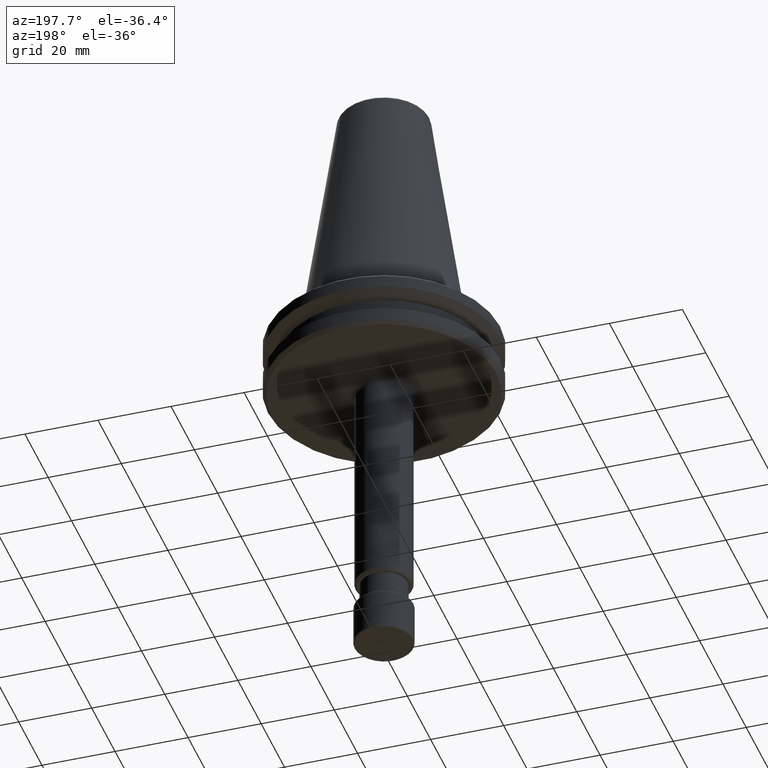
[diagram: clean part render]
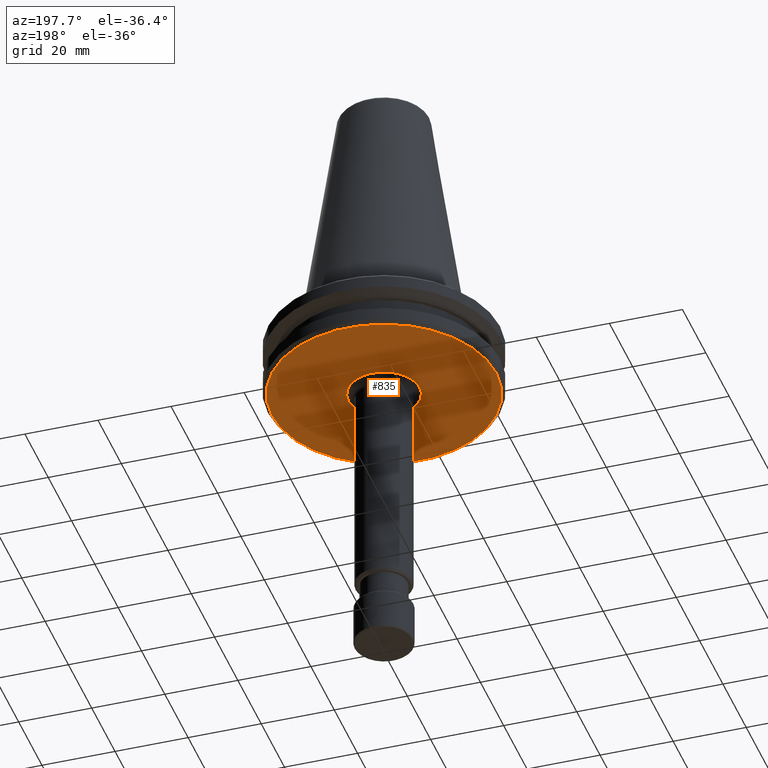
[diagram: same view with one face highlighted and labeled with its STEP entity id]
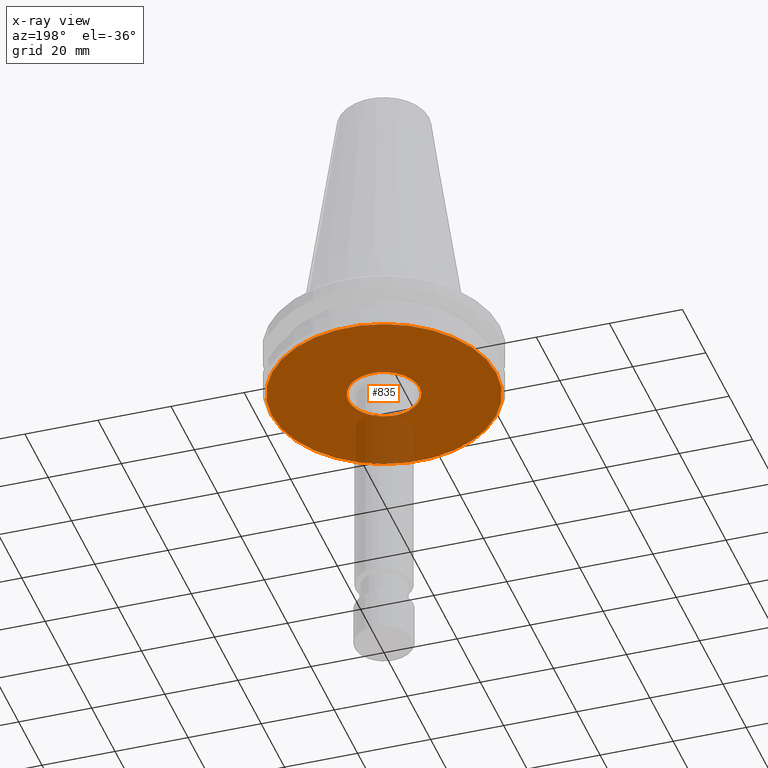
[diagram: x-ray of the same camera — body ghosted, the highlighted face saturated]
A machine part, auxiliary view. The second image highlights one B-rep face of the part: STEP entity #835.
The next image is the same camera in x-ray: the body ghosted, the highlighted face saturated — about 11% of this face is hidden behind the body in this view.
In plain terms, the highlighted planar face has unit normal (0, -0, 1).
Its self-contained STEP definition (entity closure, byte-faithful):
#11 = VERTEX_POINT ( 'NONE', #1174 ) ;
#15 = VERTEX_POINT ( 'NONE', #292 ) ;
#17 = DIRECTION ( 'NONE',  ( 1.000000000000000000, 0.0000000000000000000, 0.0000000000000000000 ) ) ;
#28 = DIRECTION ( 'NONE',  ( -0.0000000000000000000, -0.0000000000000000000, 1.000000000000000000 ) ) ;
#57 = CARTESIAN_POINT ( 'NONE',  ( 0.0000000000000000000, 0.0000000000000000000, 74.29999999999947100 ) ) ;
#58 = CARTESIAN_POINT ( 'NONE',  ( 0.0000000000000000000, 9.750000000000035500, 74.29999999999947100 ) ) ;
#69 = EDGE_LOOP ( 'NONE', ( #242, #448 ) ) ;
#106 = PLANE ( 'NONE',  #465 ) ;
#151 = DIRECTION ( 'NONE',  ( 1.000000000000000000, 0.0000000000000000000, 0.0000000000000000000 ) ) ;
#171 = CIRCLE ( 'NONE', #771, 30.75000000000016700 ) ;
#195 = DIRECTION ( 'NONE',  ( 1.000000000000000000, 0.0000000000000000000, 0.0000000000000000000 ) ) ;
#242 = ORIENTED_EDGE ( 'NONE', *, *, #1230, .T. ) ;
#278 = EDGE_CURVE ( 'NONE', #11, #744, #482, .T. ) ;
#292 = CARTESIAN_POINT ( 'NONE',  ( -9.750000000000035500, 1.194030629168673800E-015, 74.29999999999947100 ) ) ;
#349 = CARTESIAN_POINT ( 'NONE',  ( 30.75000000000016700, 0.0000000000000000000, 74.29999999999947100 ) ) ;
#374 = AXIS2_PLACEMENT_3D ( 'NONE', #760, #517, #151 ) ;
#448 = ORIENTED_EDGE ( 'NONE', *, *, #1011, .T. ) ;
#452 = DIRECTION ( 'NONE',  ( -0.0000000000000000000, -0.0000000000000000000, 1.000000000000000000 ) ) ;
#465 = AXIS2_PLACEMENT_3D ( 'NONE', #58, #1010, #984 ) ;
#482 = CIRCLE ( 'NONE', #926, 30.75000000000016700 ) ;
#506 = FACE_OUTER_BOUND ( 'NONE', #965, .T. ) ;
#517 = DIRECTION ( 'NONE',  ( -0.0000000000000000000, -0.0000000000000000000, 1.000000000000000000 ) ) ;
#519 = EDGE_CURVE ( 'NONE', #744, #11, #171, .T. ) ;
#612 = FACE_BOUND ( 'NONE', #69, .T. ) ;
#703 = AXIS2_PLACEMENT_3D ( 'NONE', #800, #809, #195 ) ;
#744 = VERTEX_POINT ( 'NONE', #349 ) ;
#760 = CARTESIAN_POINT ( 'NONE',  ( 0.0000000000000000000, 0.0000000000000000000, 74.29999999999947100 ) ) ;
#771 = AXIS2_PLACEMENT_3D ( 'NONE', #57, #452, #806 ) ;
#786 = CIRCLE ( 'NONE', #703, 9.750000000000035500 ) ;
#800 = CARTESIAN_POINT ( 'NONE',  ( 0.0000000000000000000, 0.0000000000000000000, 74.29999999999947100 ) ) ;
#806 = DIRECTION ( 'NONE',  ( 1.000000000000000000, 0.0000000000000000000, 0.0000000000000000000 ) ) ;
#809 = DIRECTION ( 'NONE',  ( -0.0000000000000000000, -0.0000000000000000000, 1.000000000000000000 ) ) ;
#823 = ORIENTED_EDGE ( 'NONE', *, *, #278, .F. ) ;
#835 = ADVANCED_FACE ( 'NONE', ( #506, #612 ), #106, .F. ) ;
#926 = AXIS2_PLACEMENT_3D ( 'NONE', #1109, #28, #17 ) ;
#965 = EDGE_LOOP ( 'NONE', ( #1221, #823 ) ) ;
#984 = DIRECTION ( 'NONE',  ( 1.000000000000000000, 0.0000000000000000000, 0.0000000000000000000 ) ) ;
#999 = CIRCLE ( 'NONE', #374, 9.750000000000035500 ) ;
#1010 = DIRECTION ( 'NONE',  ( 0.0000000000000000000, -0.0000000000000000000, 1.000000000000000000 ) ) ;
#1011 = EDGE_CURVE ( 'NONE', #15, #1213, #999, .T. ) ;
#1047 = CARTESIAN_POINT ( 'NONE',  ( 9.750000000000035500, 0.0000000000000000000, 74.29999999999947100 ) ) ;
#1109 = CARTESIAN_POINT ( 'NONE',  ( 0.0000000000000000000, 0.0000000000000000000, 74.29999999999947100 ) ) ;
#1174 = CARTESIAN_POINT ( 'NONE',  ( -30.75000000000016700, 3.827021247335486000E-015, 74.29999999999947100 ) ) ;
#1213 = VERTEX_POINT ( 'NONE', #1047 ) ;
#1221 = ORIENTED_EDGE ( 'NONE', *, *, #519, .F. ) ;
#1230 = EDGE_CURVE ( 'NONE', #1213, #15, #786, .T. ) ;